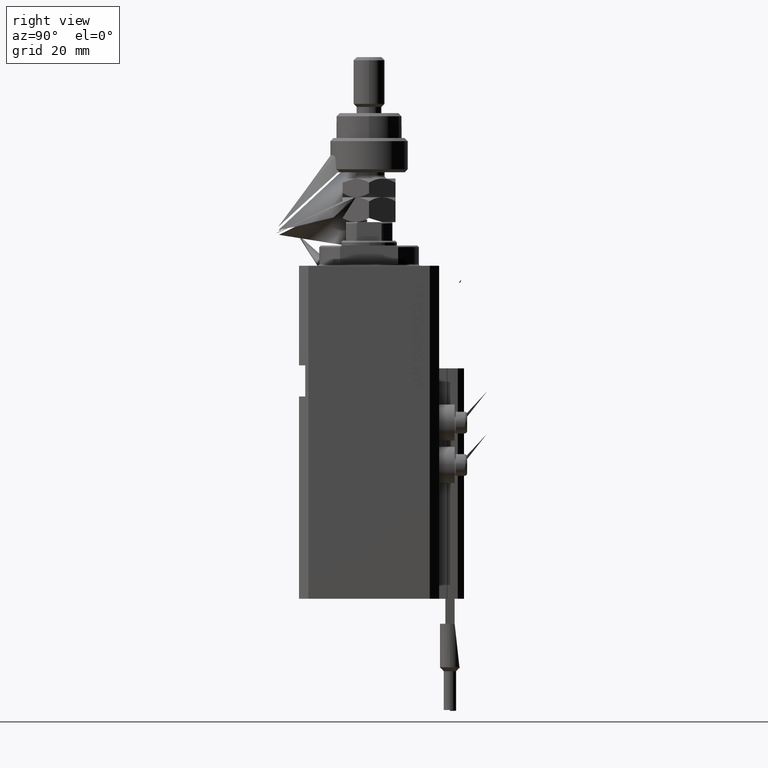
[diagram: clean part render]
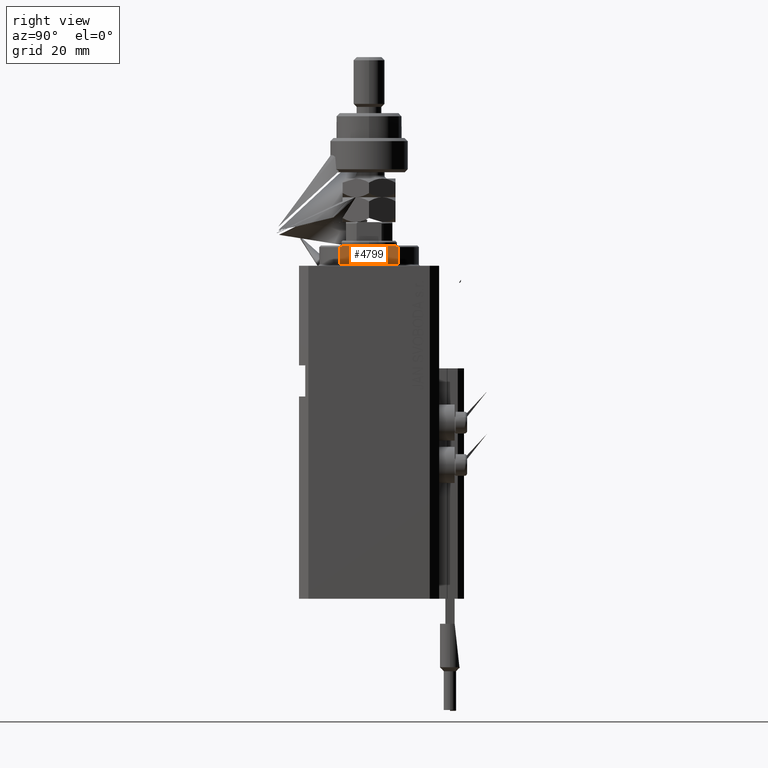
[diagram: same view with one face highlighted and labeled with its STEP entity id]
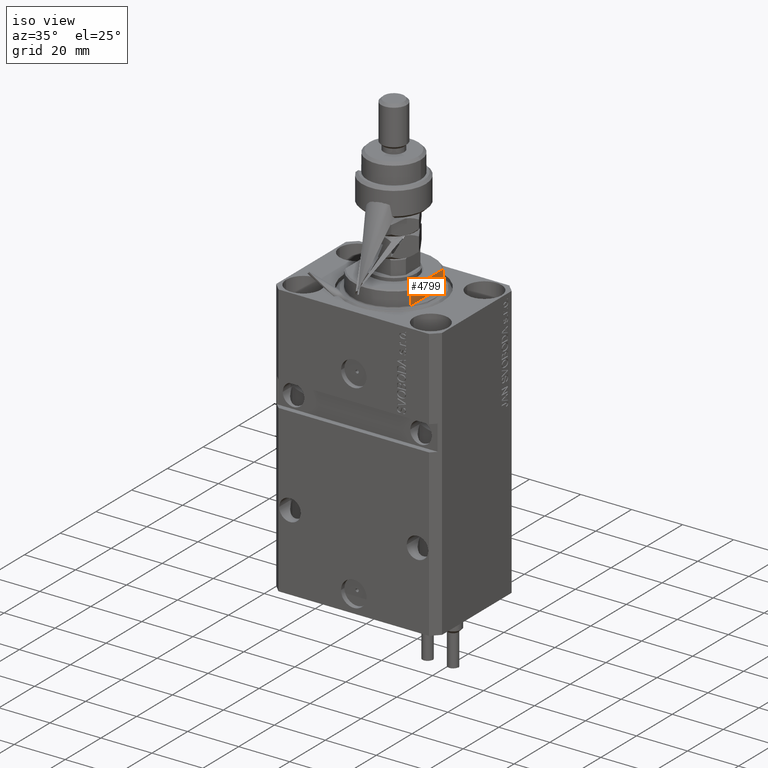
[diagram: same view with one face highlighted and labeled with its STEP entity id]
A machine part, right view. The second image highlights one B-rep face of the part: STEP entity #4799.
A second angle (iso view) of the same face is appended — the face is thin or edge-on in the first view.
In plain terms, the highlighted planar face has unit normal (-1, 0, 0).
Its self-contained STEP definition (entity closure, byte-faithful):
#231 = EDGE_CURVE ( 'NONE', #37978, #1953, #33888, .T. ) ;
#1423 = CARTESIAN_POINT ( 'NONE',  ( -13.00000000000000000, 8.440971508067139695, -6.500000000000000000 ) ) ;
#1953 = VERTEX_POINT ( 'NONE', #19228 ) ;
#3072 = DIRECTION ( 'NONE',  ( -0.000000000000000000, -1.000000000000000000, -0.000000000000000000 ) ) ;
#3750 = ORIENTED_EDGE ( 'NONE', *, *, #35103, .T. ) ;
#3903 = LINE ( 'NONE', #12442, #39212 ) ;
#4278 = EDGE_CURVE ( 'NONE', #16894, #1953, #30533, .T. ) ;
#4799 = ADVANCED_FACE ( 'NONE', ( #45052 ), #16777, .F. ) ;
#11456 = CARTESIAN_POINT ( 'NONE',  ( -13.00000000000000000, -43.08131845707602992, -6.500000000000000000 ) ) ;
#11746 = EDGE_LOOP ( 'NONE', ( #3750, #26891, #26801, #33657, #45207, #38364 ) ) ;
#12442 = CARTESIAN_POINT ( 'NONE',  ( -13.00000000000000000, 9.327379053088813876, -6.500000000000000000 ) ) ;
#12890 = CARTESIAN_POINT ( 'NONE',  ( -13.00000000000000000, 8.440971508067139695, -6.500000000000000000 ) ) ;
#13654 = EDGE_CURVE ( 'NONE', #46122, #16894, #23645, .T. ) ;
#13903 = CARTESIAN_POINT ( 'NONE',  ( -13.00000000000000000, -9.327379053088813876, -6.500000000000000000 ) ) ;
#14129 = CARTESIAN_POINT ( 'NONE',  ( -13.00000000000000000, 8.738667591047022398, -6.337881022290549282 ) ) ;
#15165 = VECTOR ( 'NONE', #3072, 1000.000000000000000 ) ;
#16701 = CARTESIAN_POINT ( 'NONE',  ( -13.00000000000000000, -8.440971508067139695, -6.500000000000000000 ) ) ;
#16777 = PLANE ( 'NONE',  #34557 ) ;
#16894 = VERTEX_POINT ( 'NONE', #34638 ) ;
#17500 = CARTESIAN_POINT ( 'NONE',  ( -13.00000000000000000, 9.034035639617135516, -6.171007825636148247 ) ) ;
#17542 = DIRECTION ( 'NONE',  ( 0.000000000000000000, 0.000000000000000000, -1.000000000000000000 ) ) ;
#19228 = CARTESIAN_POINT ( 'NONE',  ( -13.00000000000000000, -9.327379053088815652, -6.000000000000023981 ) ) ;
#21250 = EDGE_CURVE ( 'NONE', #42100, #35281, #3903, .T. ) ;
#21954 = DIRECTION ( 'NONE',  ( 0.000000000000000000, 0.000000000000000000, -1.000000000000000000 ) ) ;
#23645 = LINE ( 'NONE', #11456, #24928 ) ;
#24928 = VECTOR ( 'NONE', #43614, 1000.000000000000000 ) ;
#25806 = CARTESIAN_POINT ( 'NONE',  ( -13.00000000000000000, 9.327379053088916905, -6.000000000000014211 ) ) ;
#26219 = VECTOR ( 'NONE', #21954, 1000.000000000000000 ) ;
#26801 = ORIENTED_EDGE ( 'NONE', *, *, #4278, .T. ) ;
#26891 = ORIENTED_EDGE ( 'NONE', *, *, #13654, .T. ) ;
#26918 = CARTESIAN_POINT ( 'NONE',  ( -13.00000000000000000, -43.08131845707602992, -0.4999999999999995559 ) ) ;
#28121 = CARTESIAN_POINT ( 'NONE',  ( -13.00000000000000000, -8.738941625005658409, -6.337731789204286592 ) ) ;
#30533 = B_SPLINE_CURVE_WITH_KNOTS ( 'NONE', 3,
 ( #16701, #28121, #48622, #45706 ),
 .UNSPECIFIED., .F., .F.,
 ( 4, 4 ),
 ( 0.04915043732154475431, 0.05017913261572017058 ),
 .UNSPECIFIED. ) ;
#32918 = LINE ( 'NONE', #26918, #15165 ) ;
#33657 = ORIENTED_EDGE ( 'NONE', *, *, #231, .F. ) ;
#33888 = LINE ( 'NONE', #13903, #26219 ) ;
#34072 = B_SPLINE_CURVE_WITH_KNOTS ( 'NONE', 3,
 ( #25806, #17500, #14129, #1423 ),
 .UNSPECIFIED., .F., .F.,
 ( 4, 4 ),
 ( 0.03031084603841392722, 0.03132841702658674399 ),
 .UNSPECIFIED. ) ;
#34557 = AXIS2_PLACEMENT_3D ( 'NONE', #40394, #48957, #17542 ) ;
#34638 = CARTESIAN_POINT ( 'NONE',  ( -13.00000000000000000, -8.440971508067139695, -6.500000000000000000 ) ) ;
#35103 = EDGE_CURVE ( 'NONE', #42100, #46122, #34072, .T. ) ;
#35281 = VERTEX_POINT ( 'NONE', #48081 ) ;
#37978 = VERTEX_POINT ( 'NONE', #42787 ) ;
#38364 = ORIENTED_EDGE ( 'NONE', *, *, #21250, .F. ) ;
#39212 = VECTOR ( 'NONE', #43080, 1000.000000000000000 ) ;
#40394 = CARTESIAN_POINT ( 'NONE',  ( -13.00000000000000000, -43.08131845707602992, -0.4999999999999995559 ) ) ;
#42100 = VERTEX_POINT ( 'NONE', #49850 ) ;
#42787 = CARTESIAN_POINT ( 'NONE',  ( -13.00000000000000000, -9.327379053088815652, -0.4999999999999995559 ) ) ;
#42990 = EDGE_CURVE ( 'NONE', #35281, #37978, #32918, .T. ) ;
#43080 = DIRECTION ( 'NONE',  ( -0.000000000000000000, -0.000000000000000000, 1.000000000000000000 ) ) ;
#43614 = DIRECTION ( 'NONE',  ( -0.000000000000000000, -1.000000000000000000, -0.000000000000000000 ) ) ;
#45052 = FACE_OUTER_BOUND ( 'NONE', #11746, .T. ) ;
#45207 = ORIENTED_EDGE ( 'NONE', *, *, #42990, .F. ) ;
#45706 = CARTESIAN_POINT ( 'NONE',  ( -13.00000000000000000, -9.327379053088815652, -6.000000000000023981 ) ) ;
#46122 = VERTEX_POINT ( 'NONE', #12890 ) ;
#48081 = CARTESIAN_POINT ( 'NONE',  ( -13.00000000000000000, 9.327379053088815652, -0.4999999999999995559 ) ) ;
#48622 = CARTESIAN_POINT ( 'NONE',  ( -13.00000000000000000, -9.034292940839598884, -6.170857829009066542 ) ) ;
#48957 = DIRECTION ( 'NONE',  ( 1.000000000000000000, 0.000000000000000000, 0.000000000000000000 ) ) ;
#49850 = CARTESIAN_POINT ( 'NONE',  ( -13.00000000000000000, 9.327379053088916905, -6.000000000000014211 ) ) ;